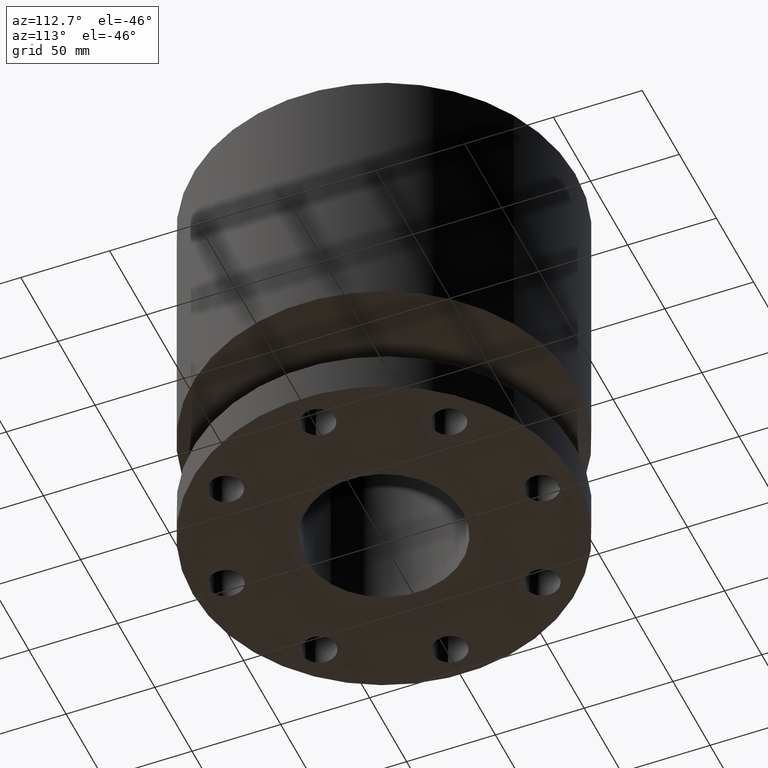
[diagram: clean part render]
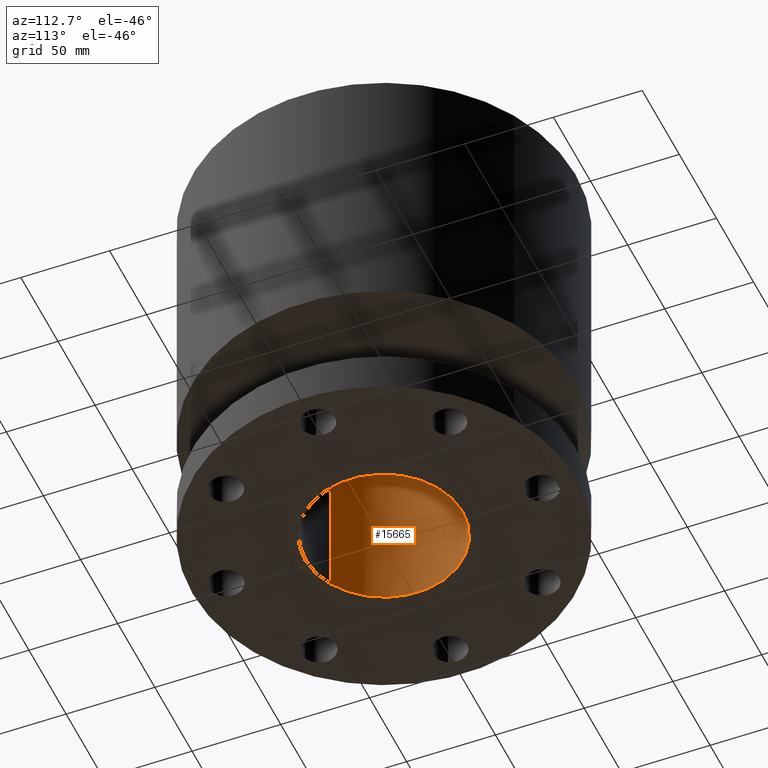
[diagram: same view with one face highlighted and labeled with its STEP entity id]
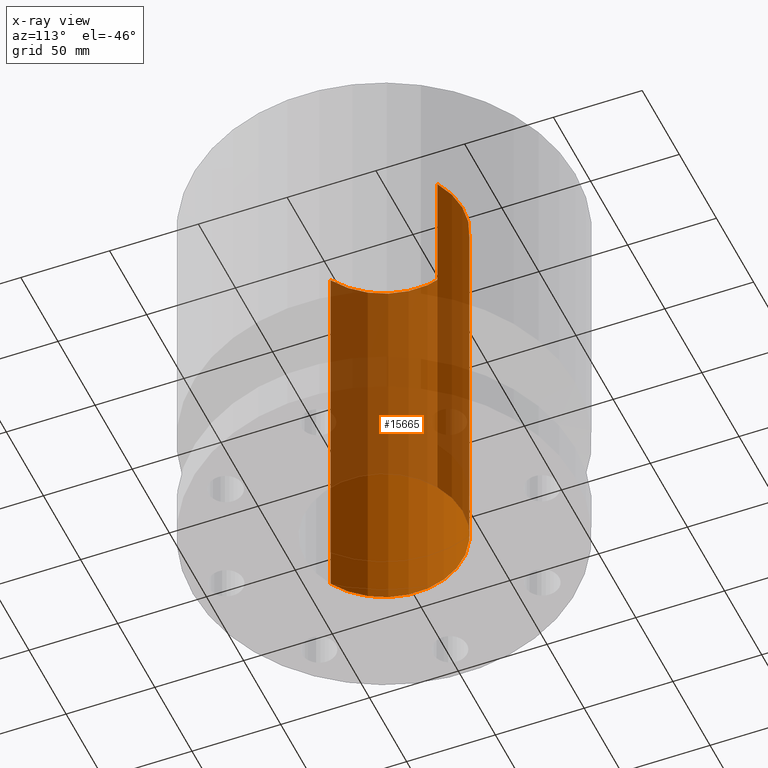
[diagram: x-ray of the same camera — body ghosted, the highlighted face saturated]
A machine part, auxiliary view. The second image highlights one B-rep face of the part: STEP entity #15665.
The next image is the same camera in x-ray: the body ghosted, the highlighted face saturated — about 65% of this face is hidden behind the body in this view.
In plain terms, the highlighted cylindrical surface (partial cylindrical patch) has radius 44.45 mm, axis along (0, 0, -1).
Its self-contained STEP definition (entity closure, byte-faithful):
#15188=AXIS2_PLACEMENT_3D('Circle Axis2P3D',#15186,#15187,$) ;
#15626=AXIS2_PLACEMENT_3D('Cylinder Axis2P3D',#15623,#15624,#15625) ;
#15656=AXIS2_PLACEMENT_3D('Circle Axis2P3D',#15654,#15655,$) ;
#15186=CARTESIAN_POINT('Axis2P3D Location',(0.,0.,8.93750000004)) ;
#15190=CARTESIAN_POINT('Vertex',(-0.838994692561,-1.53576948331,8.93750000004)) ;
#15192=CARTESIAN_POINT('Vertex',(0.838994692561,1.53576948331,8.93750000004)) ;
#15623=CARTESIAN_POINT('Axis2P3D Location',(0.,0.,4.43750000002)) ;
#15632=CARTESIAN_POINT('Vertex',(-0.838994692561,-1.53576948331,0.)) ;
#15634=CARTESIAN_POINT('Vertex',(0.838994692561,1.53576948331,0.)) ;
#15637=CARTESIAN_POINT('Line Origine',(-0.838994692561,-1.53576948331,4.46875000002)) ;
#15642=CARTESIAN_POINT('Line Origine',(0.838994692561,1.53576948331,4.46875000002)) ;
#15654=CARTESIAN_POINT('Axis2P3D Location',(0.,0.,0.)) ;
#15187=DIRECTION('Axis2P3D Direction',(0.,0.,-0.0393700787402)) ;
#15624=DIRECTION('Axis2P3D Direction',(0.,0.,-0.0393700787402)) ;
#15625=DIRECTION('Axis2P3D XDirection',(-0.0188750212049,-0.0345504945626,0.)) ;
#15638=DIRECTION('Vector Direction',(0.,0.,-0.0393700787402)) ;
#15643=DIRECTION('Vector Direction',(0.,0.,-0.0393700787402)) ;
#15655=DIRECTION('Axis2P3D Direction',(0.,0.,-0.0393700787402)) ;
#15639=VECTOR('Line Direction',#15638,0.0393700787402) ;
#15644=VECTOR('Line Direction',#15643,0.0393700787402) ;
#15660=ORIENTED_EDGE('',*,*,#15658,.F.) ;
#15661=ORIENTED_EDGE('',*,*,#15646,.F.) ;
#15662=ORIENTED_EDGE('',*,*,#15194,.F.) ;
#15663=ORIENTED_EDGE('',*,*,#15641,.T.) ;
#15665=ADVANCED_FACE('PartBody',(#15664),#15627,.F.) ;
#15189=CIRCLE('generated circle',#15188,1.75000000001) ;
#15657=CIRCLE('generated circle',#15656,1.75000000001) ;
#15627=CYLINDRICAL_SURFACE('generated cylinder',#15626,1.75000000001) ;
#15194=EDGE_CURVE('',#15191,#15193,#15189,.T.) ;
#15641=EDGE_CURVE('',#15191,#15633,#15640,.T.) ;
#15646=EDGE_CURVE('',#15193,#15635,#15645,.T.) ;
#15658=EDGE_CURVE('',#15635,#15633,#15657,.F.) ;
#15659=EDGE_LOOP('',(#15660,#15661,#15662,#15663)) ;
#15664=FACE_OUTER_BOUND('',#15659,.T.) ;
#15640=LINE('Line',#15637,#15639) ;
#15645=LINE('Line',#15642,#15644) ;
#15191=VERTEX_POINT('',#15190) ;
#15193=VERTEX_POINT('',#15192) ;
#15633=VERTEX_POINT('',#15632) ;
#15635=VERTEX_POINT('',#15634) ;